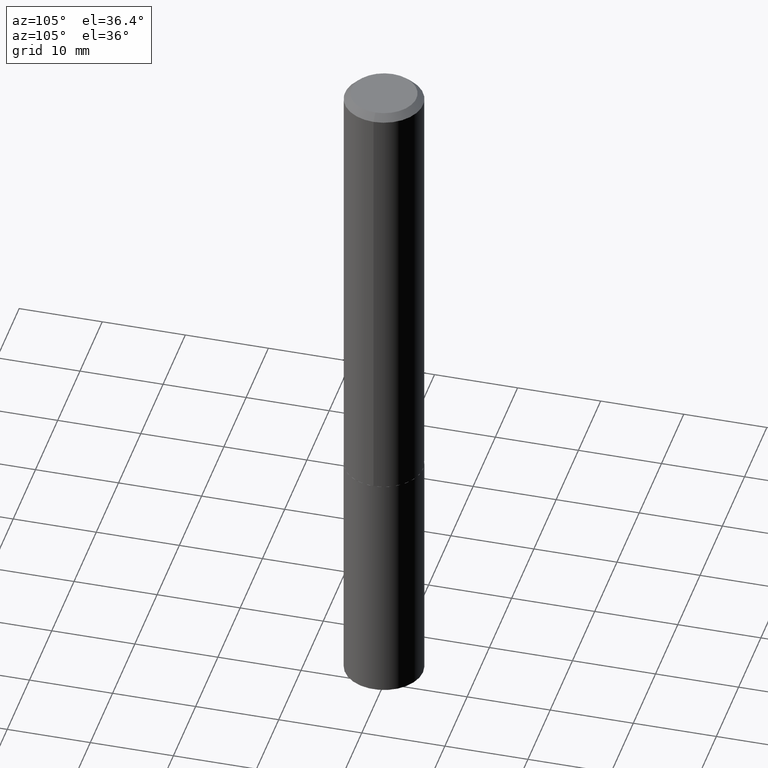
[diagram: clean part render]
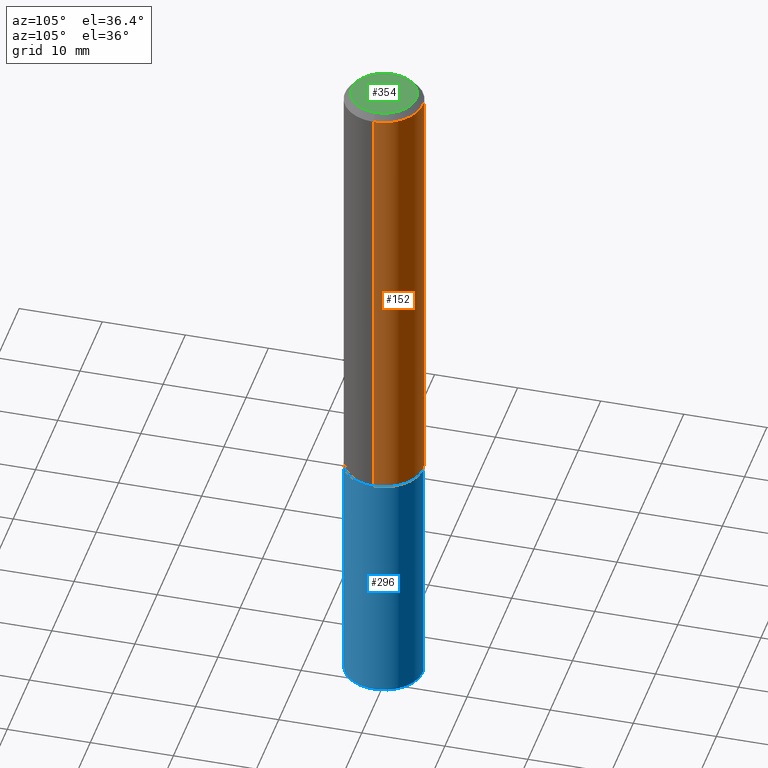
[diagram: same view with three faces highlighted in distinct colors, each labeled with its STEP entity id]
A machine part, auxiliary view with three faces highlighted in distinct colors.
Their STEP definitions:

[orange] entity #152 — the highlighted cylindrical surface (partial cylindrical patch) has radius 4.7003 mm, axis along (-0, 0, 1).
#1 = CARTESIAN_POINT ( 'NONE',  ( 5.140130883720539947E-29, -7.338744626114409370E-15, -2.101900000000000546 ) ) ;
#13 = AXIS2_PLACEMENT_3D ( 'NONE', #324, #278, #215 ) ;
#33 = AXIS2_PLACEMENT_3D ( 'NONE', #269, #83, #81 ) ;
#41 = VERTEX_POINT ( 'NONE', #186 ) ;
#51 = CYLINDRICAL_SURFACE ( 'NONE', #33, 0.1850500000000001311 ) ;
#58 = EDGE_CURVE ( 'NONE', #41, #71, #288, .T. ) ;
#59 = ORIENTED_EDGE ( 'NONE', *, *, #260, .T. ) ;
#63 = CARTESIAN_POINT ( 'NONE',  ( -0.1850500000000001311, 1.314859332524066325E-15, -9.102489384516709155E-30 ) ) ;
#66 = CIRCLE ( 'NONE', #13, 0.1850500000000000200 ) ;
#71 = VERTEX_POINT ( 'NONE', #128 ) ;
#81 = DIRECTION ( 'NONE',  ( 1.000000000000000000, -6.982962677686267499E-15, 4.876176775795935793E-29 ) ) ;
#83 = DIRECTION ( 'NONE',  ( -2.445468806185136597E-29, 3.491481338843145583E-15, 1.000000000000000000 ) ) ;
#94 = EDGE_CURVE ( 'NONE', #71, #138, #66, .T. ) ;
#105 = DIRECTION ( 'NONE',  ( -2.445468806185136877E-29, 3.491481338843145188E-15, 1.000000000000000000 ) ) ;
#115 = ORIENTED_EDGE ( 'NONE', *, *, #94, .F. ) ;
#128 = CARTESIAN_POINT ( 'NONE',  ( 0.1850500000000000200, -1.401306035344692979E-15, -0.03125000000000021511 ) ) ;
#136 = ORIENTED_EDGE ( 'NONE', *, *, #58, .F. ) ;
#138 = VERTEX_POINT ( 'NONE', #145 ) ;
#145 = CARTESIAN_POINT ( 'NONE',  ( -0.1850500000000000200, -2.409067376452562318E-15, -0.03125000000000021511 ) ) ;
#152 = ADVANCED_FACE ( 'NONE', ( #337 ), #51, .T. ) ;
#155 = VECTOR ( 'NONE', #273, 39.37007874015748143 ) ;
#156 = LINE ( 'NONE', #63, #155 ) ;
#186 = CARTESIAN_POINT ( 'NONE',  ( 0.1850500000000002143, -8.630941869620254432E-15, -2.101900000000000546 ) ) ;
#195 = EDGE_CURVE ( 'NONE', #41, #266, #357, .T. ) ;
#215 = DIRECTION ( 'NONE',  ( 1.000000000000000000, -6.982962677686267499E-15, 0.000000000000000000 ) ) ;
#219 = ORIENTED_EDGE ( 'NONE', *, *, #195, .T. ) ;
#239 = DIRECTION ( 'NONE',  ( -2.445468806185136597E-29, 3.491481338843145583E-15, 1.000000000000000000 ) ) ;
#260 = EDGE_CURVE ( 'NONE', #266, #138, #156, .T. ) ;
#264 = EDGE_LOOP ( 'NONE', ( #219, #59, #115, #136 ) ) ;
#266 = VERTEX_POINT ( 'NONE', #294 ) ;
#269 = CARTESIAN_POINT ( 'NONE',  ( 0.000000000000000000, 0.000000000000000000, 0.000000000000000000 ) ) ;
#273 = DIRECTION ( 'NONE',  ( -2.445468806185136877E-29, 3.491481338843145188E-15, 1.000000000000000000 ) ) ;
#278 = DIRECTION ( 'NONE',  ( -2.445468806185136597E-29, 3.491481338843145583E-15, 1.000000000000000000 ) ) ;
#288 = LINE ( 'NONE', #373, #307 ) ;
#294 = CARTESIAN_POINT ( 'NONE',  ( -0.1850500000000002143, -6.023885293590342059E-15, -2.101900000000000546 ) ) ;
#307 = VECTOR ( 'NONE', #105, 39.37007874015748143 ) ;
#321 = AXIS2_PLACEMENT_3D ( 'NONE', #1, #239, #329 ) ;
#324 = CARTESIAN_POINT ( 'NONE',  ( 7.642090019328604414E-31, -1.091087918388490513E-16, -0.03125000000000021511 ) ) ;
#329 = DIRECTION ( 'NONE',  ( 1.000000000000000000, -6.982962677686268288E-15, 0.000000000000000000 ) ) ;
#337 = FACE_OUTER_BOUND ( 'NONE', #264, .T. ) ;
#357 = CIRCLE ( 'NONE', #321, 0.1850500000000002143 ) ;
#373 = CARTESIAN_POINT ( 'NONE',  ( 0.1850500000000001311, -1.292197243505844668E-15, 9.023365123610386073E-30 ) ) ;

[blue] entity #296 — the highlighted cylindrical surface (partial cylindrical patch) has radius 4.7003 mm, axis along (-0, 0, 1).
#2 = VECTOR ( 'NONE', #124, 39.37007874015748143 ) ;
#20 = VERTEX_POINT ( 'NONE', #347 ) ;
#24 = ORIENTED_EDGE ( 'NONE', *, *, #111, .F. ) ;
#28 = ORIENTED_EDGE ( 'NONE', *, *, #43, .T. ) ;
#43 = EDGE_CURVE ( 'NONE', #315, #116, #270, .T. ) ;
#45 = ORIENTED_EDGE ( 'NONE', *, *, #364, .F. ) ;
#89 = CARTESIAN_POINT ( 'NONE',  ( 5.141353618123632749E-29, -7.340490366783830084E-15, -2.102400000000000713 ) ) ;
#103 = CARTESIAN_POINT ( 'NONE',  ( 5.141353618123632749E-29, -7.340490366783830084E-15, -2.102400000000000713 ) ) ;
#107 = CARTESIAN_POINT ( 'NONE',  ( 1.314859332524116418E-15, 0.1850499999999926370, -2.102400000000001157 ) ) ;
#111 = EDGE_CURVE ( 'NONE', #285, #20, #339, .T. ) ;
#116 = VERTEX_POINT ( 'NONE', #188 ) ;
#119 = VECTOR ( 'NONE', #229, 39.37007874015748143 ) ;
#124 = DIRECTION ( 'NONE',  ( -2.445315056571583283E-29, 3.491701517040638842E-15, 1.000000000000000000 ) ) ;
#129 = DIRECTION ( 'NONE',  ( -2.445315056571583283E-29, 3.491701517040638842E-15, 1.000000000000000000 ) ) ;
#130 = ORIENTED_EDGE ( 'NONE', *, *, #233, .T. ) ;
#142 = EDGE_LOOP ( 'NONE', ( #28, #130, #24, #45 ) ) ;
#153 = FACE_OUTER_BOUND ( 'NONE', #142, .T. ) ;
#159 = CARTESIAN_POINT ( 'NONE',  ( -1.292197243505792011E-15, -0.1850500000000073197, -2.102399999999999824 ) ) ;
#181 = LINE ( 'NONE', #107, #119 ) ;
#188 = CARTESIAN_POINT ( 'NONE',  ( 1.314859332524144620E-15, 0.1850499999999885847, -3.257516001940622186 ) ) ;
#191 = AXIS2_PLACEMENT_3D ( 'NONE', #103, #246, #344 ) ;
#209 = AXIS2_PLACEMENT_3D ( 'NONE', #377, #129, #291 ) ;
#229 = DIRECTION ( 'NONE',  ( -2.445315056571583283E-29, 3.491701517040638842E-15, 1.000000000000000000 ) ) ;
#233 = EDGE_CURVE ( 'NONE', #116, #20, #181, .T. ) ;
#238 = CYLINDRICAL_SURFACE ( 'NONE', #241, 0.1850499999999999923 ) ;
#241 = AXIS2_PLACEMENT_3D ( 'NONE', #89, #280, #277 ) ;
#242 = LINE ( 'NONE', #159, #2 ) ;
#246 = DIRECTION ( 'NONE',  ( -2.445315056571583283E-29, 3.491701517040638842E-15, 1.000000000000000000 ) ) ;
#270 = CIRCLE ( 'NONE', #209, 0.1850499999999999923 ) ;
#277 = DIRECTION ( 'NONE',  ( -6.982962677686265133E-15, -1.000000000000000000, 2.952551195530141356E-15 ) ) ;
#280 = DIRECTION ( 'NONE',  ( -2.445315056571583283E-29, 3.491701517040638842E-15, 1.000000000000000000 ) ) ;
#285 = VERTEX_POINT ( 'NONE', #300 ) ;
#291 = DIRECTION ( 'NONE',  ( -6.982962677686265133E-15, -1.000000000000000000, 2.952551195530141356E-15 ) ) ;
#296 = ADVANCED_FACE ( 'NONE', ( #153 ), #238, .T. ) ;
#300 = CARTESIAN_POINT ( 'NONE',  ( -1.292197243505792011E-15, -0.1850500000000073197, -2.102399999999999824 ) ) ;
#315 = VERTEX_POINT ( 'NONE', #374 ) ;
#339 = CIRCLE ( 'NONE', #191, 0.1850499999999999923 ) ;
#344 = DIRECTION ( 'NONE',  ( -6.982962677686265133E-15, -1.000000000000000000, 2.952551195530141356E-15 ) ) ;
#347 = CARTESIAN_POINT ( 'NONE',  ( 1.314859332524144817E-15, 0.1850499999999926370, -2.102400000000001157 ) ) ;
#364 = EDGE_CURVE ( 'NONE', #315, #285, #242, .T. ) ;
#374 = CARTESIAN_POINT ( 'NONE',  ( -1.292197243505763612E-15, -0.1850500000000113165, -3.257516001940621297 ) ) ;
#377 = CARTESIAN_POINT ( 'NONE',  ( 7.965976169755803543E-29, -1.137381066311781496E-14, -3.257516001940621742 ) ) ;

[green] entity #354 — the highlighted planar face has unit normal (0, -0, -1).
#3 = DIRECTION ( 'NONE',  ( 1.000000000000000000, -6.982962677686267499E-15, 4.876175355846217494E-29 ) ) ;
#7 = CIRCLE ( 'NONE', #369, 0.1537999999999999645 ) ;
#8 = DIRECTION ( 'NONE',  ( -1.000000000000000000, 6.982962677686265922E-15, -4.876176775795935793E-29 ) ) ;
#18 = VERTEX_POINT ( 'NONE', #44 ) ;
#34 = DIRECTION ( 'NONE',  ( -2.445468806185136597E-29, 3.491481338843145583E-15, 1.000000000000000000 ) ) ;
#44 = CARTESIAN_POINT ( 'NONE',  ( -0.1537999999999999645, 1.128534055747571411E-15, 2.449293598217711460E-19 ) ) ;
#68 = DIRECTION ( 'NONE',  ( 2.438088387897960049E-29, -3.491481338843145188E-15, -1.000000000000000000 ) ) ;
#72 = PLANE ( 'NONE',  #376 ) ;
#74 = ORIENTED_EDGE ( 'NONE', *, *, #139, .T. ) ;
#122 = DIRECTION ( 'NONE',  ( -2.445468806185136597E-29, 3.491481338843145583E-15, 1.000000000000000000 ) ) ;
#125 = AXIS2_PLACEMENT_3D ( 'NONE', #268, #122, #355 ) ;
#139 = EDGE_CURVE ( 'NONE', #18, #252, #163, .T. ) ;
#157 = FACE_OUTER_BOUND ( 'NONE', #169, .T. ) ;
#163 = CIRCLE ( 'NONE', #125, 0.1537999999999999645 ) ;
#169 = EDGE_LOOP ( 'NONE', ( #74, #389 ) ) ;
#210 = CARTESIAN_POINT ( 'NONE',  ( -2.994835545909349753E-48, 4.275831445897006817E-34, 1.224646799147362533E-19 ) ) ;
#230 = EDGE_CURVE ( 'NONE', #252, #18, #7, .T. ) ;
#252 = VERTEX_POINT ( 'NONE', #365 ) ;
#268 = CARTESIAN_POINT ( 'NONE',  ( -5.989671091818699506E-48, 8.551662891794013634E-34, 2.449293598294725065E-19 ) ) ;
#354 = ADVANCED_FACE ( 'NONE', ( #157 ), #72, .F. ) ;
#355 = DIRECTION ( 'NONE',  ( 1.000000000000000000, -6.982962677686267499E-15, 4.876175355846217494E-29 ) ) ;
#365 = CARTESIAN_POINT ( 'NONE',  ( 0.1537999999999999645, -1.216894269191866197E-15, 2.449293598374824010E-19 ) ) ;
#367 = CARTESIAN_POINT ( 'NONE',  ( -5.989671091818699506E-48, 8.551662891794013634E-34, 2.449293598294725065E-19 ) ) ;
#369 = AXIS2_PLACEMENT_3D ( 'NONE', #367, #34, #3 ) ;
#376 = AXIS2_PLACEMENT_3D ( 'NONE', #210, #68, #8 ) ;
#389 = ORIENTED_EDGE ( 'NONE', *, *, #230, .T. ) ;